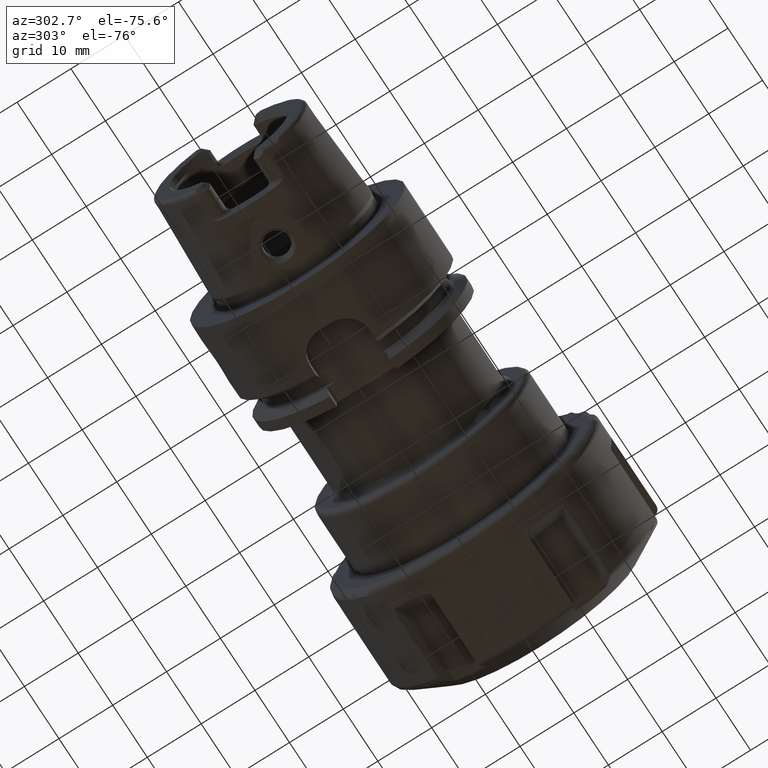
[diagram: clean part render]
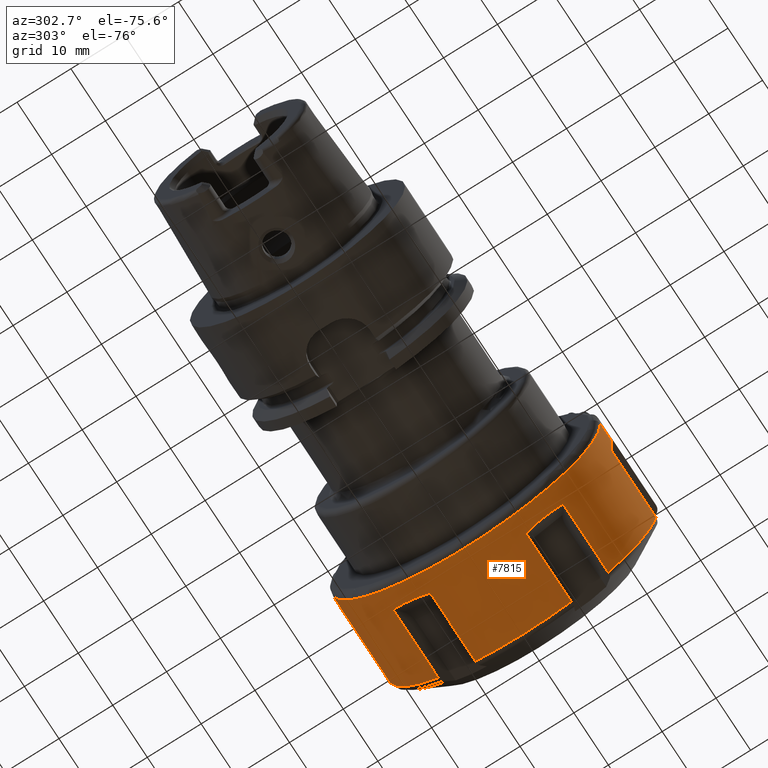
[diagram: same view with one face highlighted and labeled with its STEP entity id]
A machine part, auxiliary view. The second image highlights one B-rep face of the part: STEP entity #7815.
In plain terms, the highlighted cylindrical surface (partial cylindrical patch) has radius 25 mm, axis along (1, 0, 0).
Its self-contained STEP definition (entity closure, byte-faithful):
#6979=CARTESIAN_POINT('',(4.807079781803E0,8.904151986948E0,-2.336056671815E1));
#6980=CARTESIAN_POINT('',(4.381591242552E0,1.140843500467E1,-2.240603008909E1));
#6981=CARTESIAN_POINT('',(4.381591242552E0,1.369997375277E1,-2.108300957602E1));
#6982=CARTESIAN_POINT('',(4.807079781803E0,1.577876823125E1,-1.939150517893E1));
#6984=DIRECTION('',(1.E0,0.E0,0.E0));
#6985=VECTOR('',#6984,1.307411806468E1);
#6986=CARTESIAN_POINT('',(4.807079781803E0,1.577876823125E1,-1.939150517893E1));
#6987=LINE('',#6986,#6985);
#6988=CARTESIAN_POINT('',(1.788119784648E1,0.E0,0.E0));
#6989=DIRECTION('',(-1.E0,0.E0,0.E0));
#6990=DIRECTION('',(0.E0,9.873168087279E-1,-1.587624615689E-1));
#6991=AXIS2_PLACEMENT_3D('',#6988,#6989,#6990);
#6993=DIRECTION('',(1.E0,0.E0,0.E0));
#6994=VECTOR('',#6993,1.307411806468E1);
#6995=CARTESIAN_POINT('',(4.807079781803E0,2.468292021820E1,-3.969061539222E0));
#6996=LINE('',#6995,#6994);
#6997=CARTESIAN_POINT('',(4.807079781803E0,2.468292021820E1,-3.969061539222E0));
#6998=CARTESIAN_POINT('',(4.729701493378E0,2.476029850662E1,-3.487859093522E0));
#6999=CARTESIAN_POINT('',(4.609219197891E0,2.488166969100E1,-2.550817383639E0));
#7000=CARTESIAN_POINT('',(4.504536623461E0,2.498235226543E1,-1.228026509027E0));
#7001=CARTESIAN_POINT('',(4.5E0,2.499666666667E1,-4.003888699202E-1));
#7002=CARTESIAN_POINT('',(4.5E0,2.499666666667E1,1.417951640115E-14));
#7004=DIRECTION('',(-9.999994740307E-1,1.025640486187E-3,1.577133168835E-12));
#7005=VECTOR('',#7004,3.250001709401E0);
#7006=CARTESIAN_POINT('',(4.5E0,2.499666666667E1,1.417951640115E-14));
#7007=LINE('',#7006,#7005);
#7008=CARTESIAN_POINT('',(1.25E0,0.E0,0.E0));
#7009=DIRECTION('',(-1.E0,0.E0,0.E0));
#7010=DIRECTION('',(0.E0,1.E0,0.E0));
#7011=AXIS2_PLACEMENT_3D('',#7008,#7009,#7010);
#7013=DIRECTION('',(-9.999994740307E-1,-1.025640486184E-3,-1.578379367537E-12));
#7014=VECTOR('',#7013,3.250001709401E0);
#7015=CARTESIAN_POINT('',(4.5E0,-2.499666666667E1,-1.240051271650E-14));
#7016=LINE('',#7015,#7014);
#7017=CARTESIAN_POINT('',(4.5E0,-2.499666666667E1,-1.240051271650E-14));
#7018=CARTESIAN_POINT('',(4.5E0,-2.499666666667E1,-1.451714455632E-1));
#7019=CARTESIAN_POINT('',(4.487872521708E0,-2.499903346707E1,
-4.463428212676E-1));
#7020=CARTESIAN_POINT('',(4.506996588005E0,-2.498383245127E1,
-9.338081408938E-1));
#7021=CARTESIAN_POINT('',(4.530046438305E0,-2.495973141581E1,
-1.454059244478E0));
#7022=CARTESIAN_POINT('',(4.569007848129E0,-2.492105169613E1,
-2.013026454191E0));
#7023=CARTESIAN_POINT('',(4.624405857984E0,-2.486557811087E1,
-2.614252934544E0));
#7024=CARTESIAN_POINT('',(4.700654693787E0,-2.478934988654E1,
-3.262138709532E0));
#7025=CARTESIAN_POINT('',(4.768334245703E0,-2.472166575430E1,
-3.728109624791E0));
#7026=CARTESIAN_POINT('',(4.807079781803E0,-2.468292021820E1,
-3.969061539222E0));
#7028=DIRECTION('',(1.E0,0.E0,0.E0));
#7029=VECTOR('',#7028,1.307411806468E1);
#7030=CARTESIAN_POINT('',(4.807079781803E0,-2.468292021820E1,
-3.969061539222E0));
#7031=LINE('',#7030,#7029);
#7032=CARTESIAN_POINT('',(1.788119784648E1,0.E0,0.E0));
#7033=DIRECTION('',(-1.E0,0.E0,0.E0));
#7034=DIRECTION('',(0.E0,-6.311507292499E-1,-7.756602071573E-1));
#7035=AXIS2_PLACEMENT_3D('',#7032,#7033,#7034);
#7037=DIRECTION('',(1.E0,0.E0,0.E0));
#7038=VECTOR('',#7037,1.307411806468E1);
#7039=CARTESIAN_POINT('',(4.807079781803E0,-1.577876823125E1,
-1.939150517893E1));
#7040=LINE('',#7039,#7038);
#7041=CARTESIAN_POINT('',(4.807079781803E0,-1.577876823125E1,
-1.939150517893E1));
#7042=CARTESIAN_POINT('',(4.381591242552E0,-1.369997375277E1,
-2.108300957602E1));
#7043=CARTESIAN_POINT('',(4.381591242552E0,-1.140843500467E1,
-2.240603008909E1));
#7044=CARTESIAN_POINT('',(4.807079781803E0,-8.904151986948E0,
-2.336056671815E1));
#7046=DIRECTION('',(1.E0,0.E0,0.E0));
#7047=VECTOR('',#7046,1.307411806468E1);
#7048=CARTESIAN_POINT('',(4.807079781803E0,-8.904151986948E0,
-2.336056671815E1));
#7049=LINE('',#7048,#7047);
#7050=CARTESIAN_POINT('',(1.788119784648E1,0.E0,0.E0));
#7051=DIRECTION('',(-1.E0,0.E0,0.E0));
#7052=DIRECTION('',(0.E0,3.561660794779E-1,-9.344226687262E-1));
#7053=AXIS2_PLACEMENT_3D('',#7050,#7051,#7052);
#7055=DIRECTION('',(1.E0,0.E0,0.E0));
#7056=VECTOR('',#7055,1.307411806468E1);
#7057=CARTESIAN_POINT('',(4.807079781803E0,8.904151986948E0,-2.336056671815E1));
#7058=LINE('',#7057,#7056);
#7125=CARTESIAN_POINT('',(1.788119784648E1,-1.577876823125E1,
-1.939150517893E1));
#7145=CARTESIAN_POINT('',(1.788119784648E1,-2.468292021820E1,
-3.969061539222E0));
#7156=CARTESIAN_POINT('',(1.788119784648E1,1.577876823125E1,-1.939150517893E1));
#7158=CARTESIAN_POINT('',(1.788119784648E1,2.468292021820E1,-3.969061539222E0));
#7169=CARTESIAN_POINT('',(1.788119784648E1,8.904151986948E0,-2.336056671815E1));
#7189=CARTESIAN_POINT('',(1.788119784648E1,-8.904151986948E0,
-2.336056671815E1));
#7563=CARTESIAN_POINT('',(1.25E0,2.5E1,0.E0));
#7564=CARTESIAN_POINT('',(1.25E0,-2.5E1,0.E0));
#7565=VERTEX_POINT('',#7563);
#7566=VERTEX_POINT('',#7564);
#7573=VERTEX_POINT('',#7158);
#7576=CARTESIAN_POINT('',(4.807079781803E0,2.468292021820E1,-3.969061539222E0));
#7577=VERTEX_POINT('',#7576);
#7618=VERTEX_POINT('',#7145);
#7622=CARTESIAN_POINT('',(4.807079781803E0,-2.468292021820E1,
-3.969061539222E0));
#7623=VERTEX_POINT('',#7622);
#7633=VERTEX_POINT('',#7189);
#7634=VERTEX_POINT('',#7125);
#7635=CARTESIAN_POINT('',(4.807079781803E0,-8.904151986948E0,
-2.336056671815E1));
#7636=VERTEX_POINT('',#7635);
#7637=CARTESIAN_POINT('',(4.807079781803E0,-1.577876823125E1,
-1.939150517893E1));
#7638=VERTEX_POINT('',#7637);
#7648=VERTEX_POINT('',#7156);
#7649=VERTEX_POINT('',#7169);
#7650=CARTESIAN_POINT('',(4.807079781803E0,1.577876823125E1,-1.939150517893E1));
#7651=VERTEX_POINT('',#7650);
#7652=CARTESIAN_POINT('',(4.807079781803E0,8.904151986948E0,-2.336056671815E1));
#7653=VERTEX_POINT('',#7652);
#7659=CARTESIAN_POINT('',(4.5E0,-2.499666666667E1,-1.240051271650E-14));
#7660=VERTEX_POINT('',#7659);
#7661=CARTESIAN_POINT('',(4.5E0,2.499666666667E1,1.417951640115E-14));
#7662=VERTEX_POINT('',#7661);
#7779=CARTESIAN_POINT('',(-1.125E0,0.E0,0.E0));
#7780=DIRECTION('',(1.E0,0.E0,0.E0));
#7781=DIRECTION('',(0.E0,-1.E0,0.E0));
#7782=AXIS2_PLACEMENT_3D('',#7779,#7780,#7781);
#7783=CYLINDRICAL_SURFACE('',#7782,2.5E1);
#7784=ORIENTED_EDGE('',*,*,#7773,.T.);
#7785=ORIENTED_EDGE('',*,*,#7726,.T.);
#7787=ORIENTED_EDGE('',*,*,#7786,.F.);
#7789=ORIENTED_EDGE('',*,*,#7788,.F.);
#7791=ORIENTED_EDGE('',*,*,#7790,.T.);
#7793=ORIENTED_EDGE('',*,*,#7792,.T.);
#7795=ORIENTED_EDGE('',*,*,#7794,.T.);
#7797=ORIENTED_EDGE('',*,*,#7796,.F.);
#7799=ORIENTED_EDGE('',*,*,#7798,.T.);
#7801=ORIENTED_EDGE('',*,*,#7800,.T.);
#7803=ORIENTED_EDGE('',*,*,#7802,.F.);
#7805=ORIENTED_EDGE('',*,*,#7804,.F.);
#7807=ORIENTED_EDGE('',*,*,#7806,.T.);
#7809=ORIENTED_EDGE('',*,*,#7808,.T.);
#7811=ORIENTED_EDGE('',*,*,#7810,.F.);
#7812=ORIENTED_EDGE('',*,*,#7756,.F.);
#7813=EDGE_LOOP('',(#7784,#7785,#7787,#7789,#7791,#7793,#7795,#7797,#7799,#7801,
#7803,#7805,#7807,#7809,#7811,#7812));
#7814=FACE_OUTER_BOUND('',#7813,.F.);
#7815=ADVANCED_FACE('',(#7814),#7783,.T.);
#6983=B_SPLINE_CURVE_WITH_KNOTS('',3,(#6979,#6980,#6981,#6982),.UNSPECIFIED.,
.F.,.F.,(4,4),(0.E0,1.E0),.UNSPECIFIED.);
#6992=CIRCLE('',#6991,2.5E1);
#7003=B_SPLINE_CURVE_WITH_KNOTS('',3,(#6997,#6998,#6999,#7000,#7001,#7002),
.UNSPECIFIED.,.F.,.F.,(4,1,1,4),(0.E0,3.333333333333E-1,6.666666666667E-1,1.E0),
.UNSPECIFIED.);
#7012=CIRCLE('',#7011,2.5E1);
#7027=B_SPLINE_CURVE_WITH_KNOTS('',3,(#7017,#7018,#7019,#7020,#7021,#7022,#7023,
#7024,#7025,#7026),.UNSPECIFIED.,.F.,.F.,(4,1,1,1,1,1,1,4),(0.E0,
1.428571428571E-1,2.857142857143E-1,4.285714285714E-1,5.714285714286E-1,
7.142857142857E-1,8.571428571429E-1,1.E0),.UNSPECIFIED.);
#7036=CIRCLE('',#7035,2.5E1);
#7045=B_SPLINE_CURVE_WITH_KNOTS('',3,(#7041,#7042,#7043,#7044),.UNSPECIFIED.,
.F.,.F.,(4,4),(0.E0,1.E0),.UNSPECIFIED.);
#7054=CIRCLE('',#7053,2.5E1);
#7726=EDGE_CURVE('',#7651,#7648,#6987,.T.);
#7756=EDGE_CURVE('',#7653,#7649,#7058,.T.);
#7773=EDGE_CURVE('',#7653,#7651,#6983,.T.);
#7786=EDGE_CURVE('',#7573,#7648,#6992,.T.);
#7788=EDGE_CURVE('',#7577,#7573,#6996,.T.);
#7790=EDGE_CURVE('',#7577,#7662,#7003,.T.);
#7792=EDGE_CURVE('',#7662,#7565,#7007,.T.);
#7794=EDGE_CURVE('',#7565,#7566,#7012,.T.);
#7796=EDGE_CURVE('',#7660,#7566,#7016,.T.);
#7798=EDGE_CURVE('',#7660,#7623,#7027,.T.);
#7800=EDGE_CURVE('',#7623,#7618,#7031,.T.);
#7802=EDGE_CURVE('',#7634,#7618,#7036,.T.);
#7804=EDGE_CURVE('',#7638,#7634,#7040,.T.);
#7806=EDGE_CURVE('',#7638,#7636,#7045,.T.);
#7808=EDGE_CURVE('',#7636,#7633,#7049,.T.);
#7810=EDGE_CURVE('',#7649,#7633,#7054,.T.);